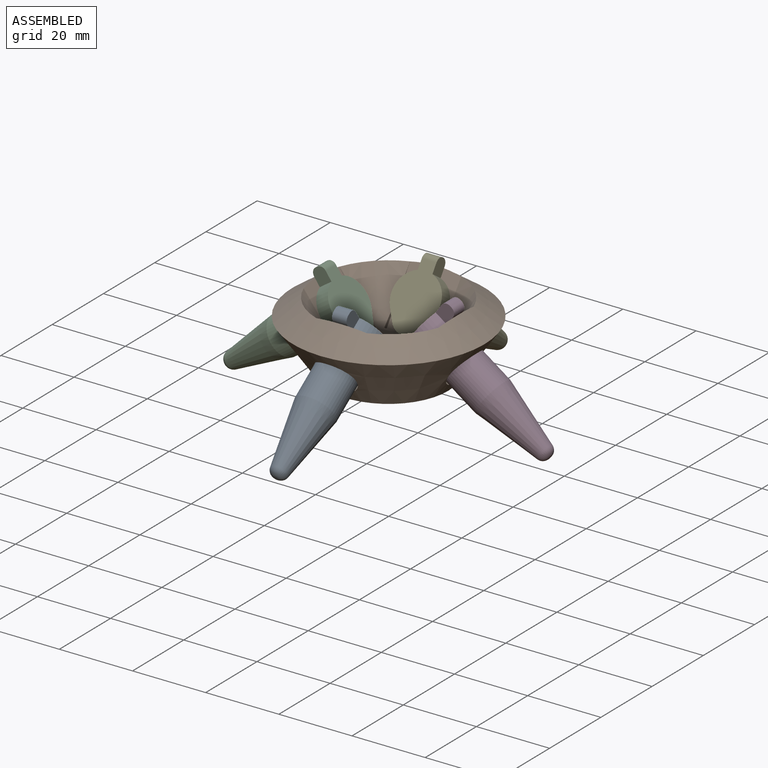
[diagram: assembled view]
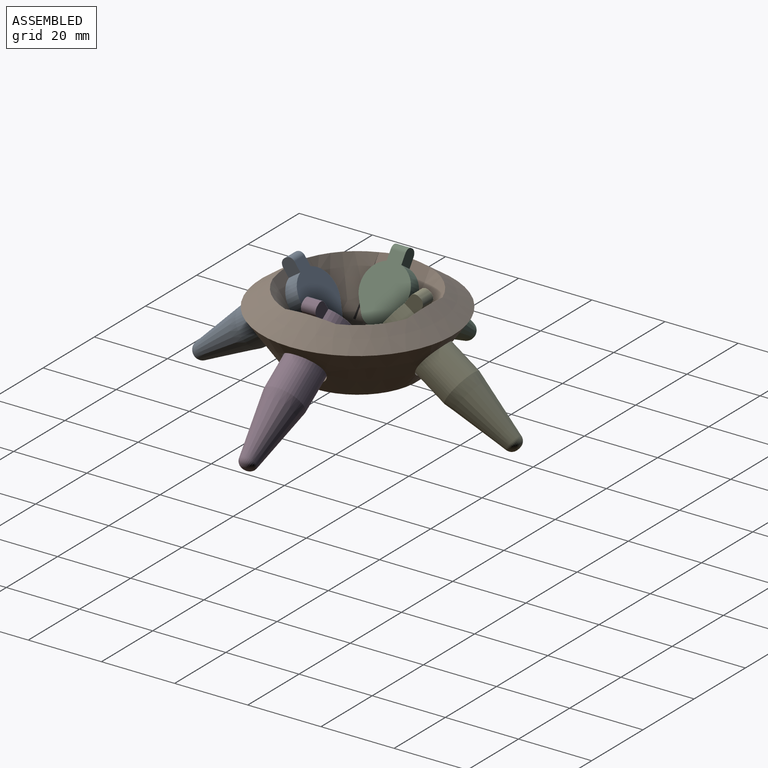
[diagram: assembled view, second angle]
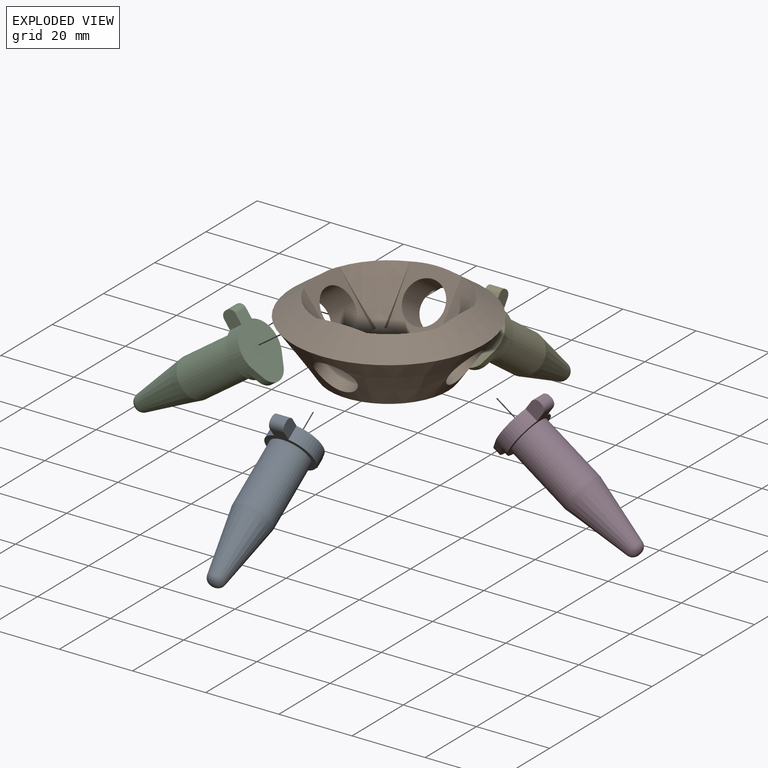
[diagram: exploded view]
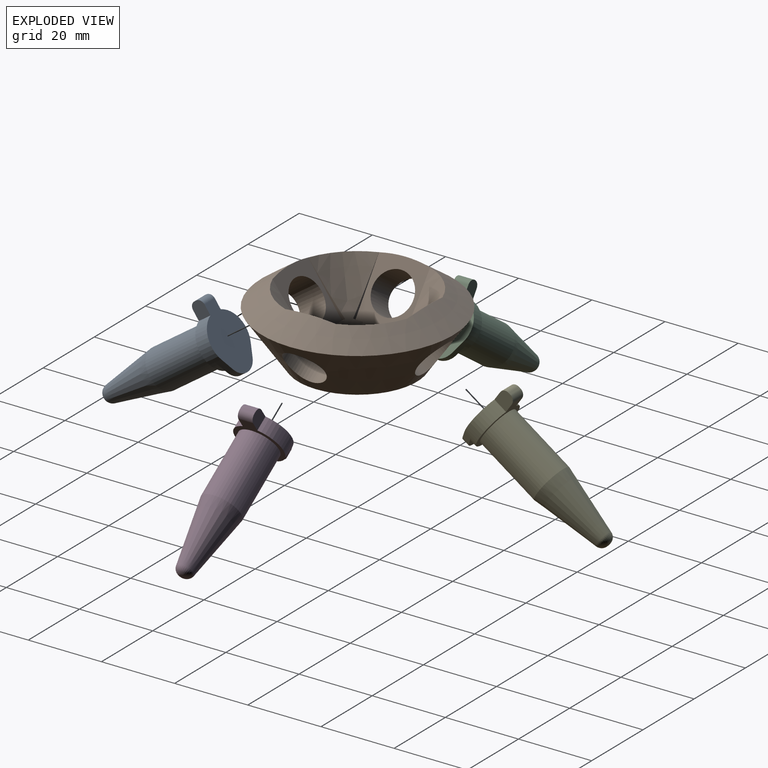
[diagram: exploded view, second angle]
ASSEMBLY  parts=5 mates=4
PART A: 16 faces, bbox 13.3x19.6x40.9 mm
  f0: cylinder r=6.65mm len=13.3mm, axis (0,0,-1), area 117.3mm2, adj f2,f3,f4,f5,f8,f9,f10
  f1: cylinder r=4.42mm len=7.62mm, axis (0,0,-1), area 19mm2, adj f2,f3,f4,f8
  f2: plane 3.28x2.07mm, normal (-0.86,0.51,0), area 7.9mm2, adj f0,f1,f4,f8
  f3: plane 3.28x2.07mm, normal (0.86,0.51,0), area 7.9mm2, adj f0,f1,f4,f8
  f4: plane 17.9x13.3mm, normal (0,0,1), area 165.5mm2, adj f0,f1,f2,f3,f9,f10,f13
  f5: plane 15.72x13.3mm, normal (0,0,-1), area 57.8mm2, adj f0,f6,f9,f10,f12
  f6: cylinder r=5.39mm len=18mm, axis (0,0,1), area 609.6mm2, adj f5,f14
  f7: plane 0.72x0.72mm, normal (0,0,-1), area 0.4mm2, adj f15
  f8: plane 11.47x5.46mm, normal (0,0,-1), area 16.4mm2, adj f0,f1,f2,f3
  f9: plane 4.42x3.87mm, normal (1,0,0), area 15.9mm2, adj f0,f4,f5,f11,f12,f13
  f10: plane 4.42x3.87mm, normal (-1,0,0), area 15.9mm2, adj f0,f4,f5,f11,f12,f13
  f11: plane 4.01x0.49mm, normal (0,-1,0), area 2mm2, adj f9,f10,f12,f13
  f12: cylinder r=1.69mm len=4.01mm, axis (1,0,0), area 10.6mm2, adj f5,f9,f10,f11
  f13: cylinder r=1.69mm len=4.01mm, axis (1,0,0), area 10.6mm2, adj f4,f9,f10,f11
  f14: cone r=5.39mm half-angle=10deg, axis (0,0,1), area 427.3mm2, adj f6,f15
  f15: torus R=0.36mm, axis (0,0,1), area 27.1mm2, adj f7,f14
PART B: 36 faces, bbox 52.4x52.4x19.4 mm
  f0: plane 17.49x17.49mm, normal (0,0,1), area 252.9mm2, adj f1,f2,f3,f4,f5,f6,f7,f8
  f1: cylinder r=1.5mm len=5mm, axis (0,0,1), area 47.1mm2, adj f0,f13
  f2: cylinder r=1.5mm len=5mm, axis (0,0,1), area 47.1mm2, adj f0,f13
  f3: cone r=19.64mm half-angle=35deg, axis (0,0,1), area 150.1mm2, adj f0,f4,f10,f14,f15,f16,f17,f35
  f4: plane 14.35x14.01mm, normal (0,0.82,0.57), area 138.5mm2, adj f0,f3,f5,f16,f17,f18,f19,f20
  f5: cone r=19.64mm half-angle=35deg, axis (0,0,1), area 150.1mm2, adj f0,f4,f6,f19,f20,f21,f22,f35
  f6: plane 14.35x14.01mm, normal (-0.82,0,0.57), area 138.5mm2, adj f0,f5,f7,f21,f22,f23,f24,f25
  f7: cone r=19.64mm half-angle=35deg, axis (0,0,1), area 150.1mm2, adj f0,f6,f8,f24,f25,f26,f27,f35
  f8: plane 14.35x14.01mm, normal (0,-0.82,0.57), area 138.5mm2, adj f0,f7,f9,f26,f27,f28,f29,f30
  f9: cone r=19.64mm half-angle=35deg, axis (0,0,1), area 150.1mm2, adj f0,f8,f10,f29,f30,f31,f32,f35
  f10: plane 14.35x14.01mm, normal (0.82,0,0.57), area 138.5mm2, adj f0,f3,f9,f14,f15,f31,f32,f33
  f11: cylinder r=1.5mm len=5mm, axis (0,0,1), area 47.1mm2, adj f0,f13
  f12: cylinder r=1.5mm len=5mm, axis (0,0,1), area 47.1mm2, adj f0,f13
  f13: plane 32.53x32.53mm, normal (0,0,-1), area 802.9mm2, adj f1,f2,f11,f12,f34
  f14: plane 13.17x10.09mm, normal (0,1,0), area 6.9mm2, adj f3,f10,f15,f35
  f15: plane 2.11x0.94mm, normal (-0.57,0,0.82), area 1mm2, adj f3,f10,f14
  f16: plane 2.11x0.94mm, normal (0,-0.57,0.82), area 1mm2, adj f3,f4,f17
  f17: plane 13.17x10.09mm, normal (1,0,0), area 6.9mm2, adj f3,f4,f16,f35
  f18: cylinder r=5.65mm len=14.44mm, axis (0,0.82,0.57), area 311.8mm2, adj f4,f34
  f19: plane 13.17x10.09mm, normal (-1,0,0), area 6.9mm2, adj f4,f5,f20,f35
  f20: plane 2.11x0.94mm, normal (0,-0.57,0.82), area 1mm2, adj f4,f5,f19
  f21: plane 2.11x0.94mm, normal (0.57,0,0.82), area 1mm2, adj f5,f6,f22
  f22: plane 13.17x10.09mm, normal (0,1,0), area 6.9mm2, adj f5,f6,f21,f35
  f23: cylinder r=5.65mm len=14.44mm, axis (-0.82,0,0.57), area 316.2mm2, adj f6,f34
  f24: plane 13.17x10.09mm, normal (0,-1,0), area 6.9mm2, adj f6,f7,f25,f35
  f25: plane 2.11x0.94mm, normal (0.57,0,0.82), area 1mm2, adj f6,f7,f24
  f26: plane 2.11x0.94mm, normal (0,0.57,0.82), area 1mm2, adj f7,f8,f27
  f27: plane 13.17x10.09mm, normal (-1,0,0), area 6.9mm2, adj f7,f8,f26,f35
  f28: cylinder r=5.65mm len=14.44mm, axis (0,-0.82,0.57), area 311.8mm2, adj f8,f34
  f29: plane 13.17x10.09mm, normal (1,0,0), area 6.9mm2, adj f8,f9,f30,f35
  f30: plane 2.11x0.94mm, normal (0,0.57,0.82), area 1mm2, adj f8,f9,f29
  f31: plane 2.11x0.94mm, normal (-0.57,0,0.82), area 1mm2, adj f9,f10,f32
  f32: plane 13.17x10.09mm, normal (0,-1,0), area 6.9mm2, adj f9,f10,f31,f35
  f33: cylinder r=5.65mm len=14.44mm, axis (0.82,0,0.57), area 311.8mm2, adj f10,f34
  f34: cone r=16.27mm half-angle=35deg, axis (0,0,1), area 1904.3mm2, adj f13,f18,f23,f28,f33,f35
  f35: cone r=26.19mm half-angle=55deg, axis (0,0,-1), area 1190.1mm2, adj f3,f4,f5,f6,f7,f8,f9,f10
PART C: same geometry as A
PART D: same geometry as A
PART E: same geometry as A
PLACE A rot(axis=(-1,0,0),55deg) t=(0,-4.92,-10.92)mm
PLACE B at identity
PLACE C rot(axis=(-0.42,0.42,-0.81),102.3deg) t=(-4.92,0,-10.92)mm
PLACE D rot(axis=(-0.42,-0.42,0.81),102.3deg) t=(4.92,0,-10.92)mm
PLACE E rot(axis=(0,0.46,-0.89),180deg) t=(0,4.92,-10.92)mm
MATE slider C.f6 <-> B.f33  axis (-0.82,0,-0.57) through (-13.77,0,12.18)mm
MATE fastened E.f6 <-> B.f28  axis (0,0.82,-0.57) through (0,13.77,12.18)mm
MATE fastened D.f6 <-> B.f23  axis (0.82,0,-0.57) through (13.77,0,12.18)mm
MATE fastened A.f6 <-> B.f18  axis (0,-0.82,-0.57) through (0,-13.77,12.18)mm
